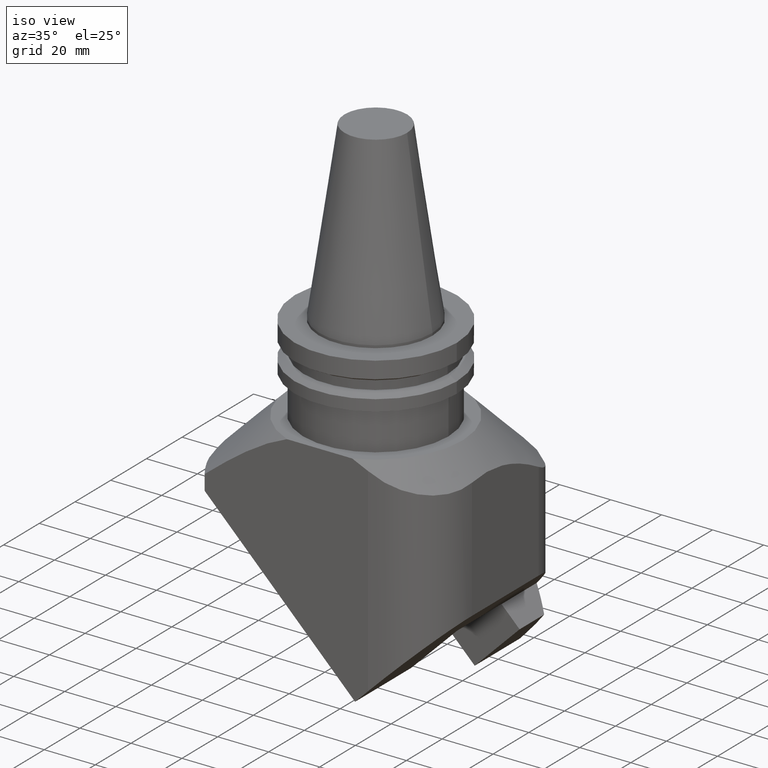
[diagram: clean part render]
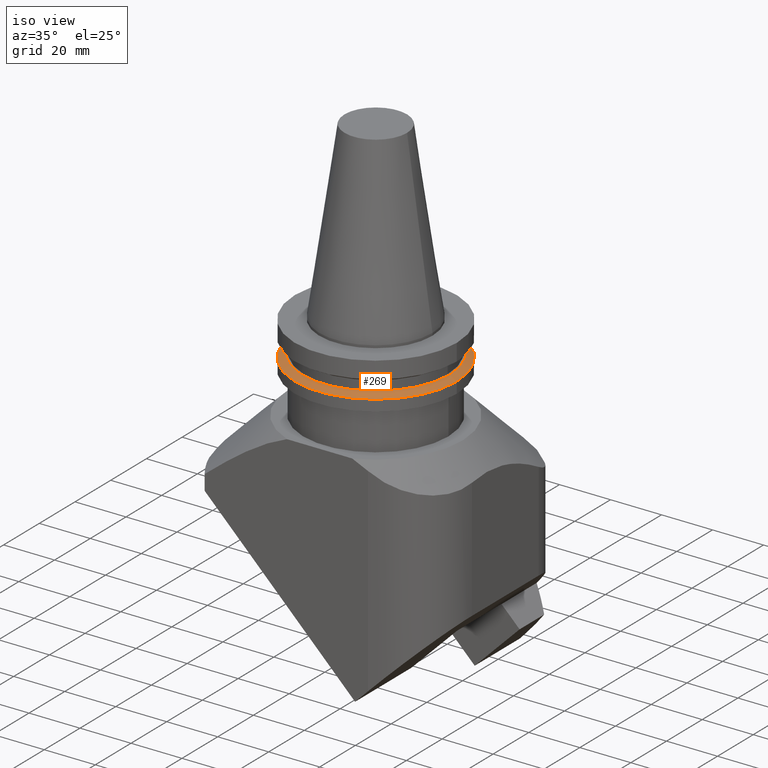
[diagram: same view with one face highlighted and labeled with its STEP entity id]
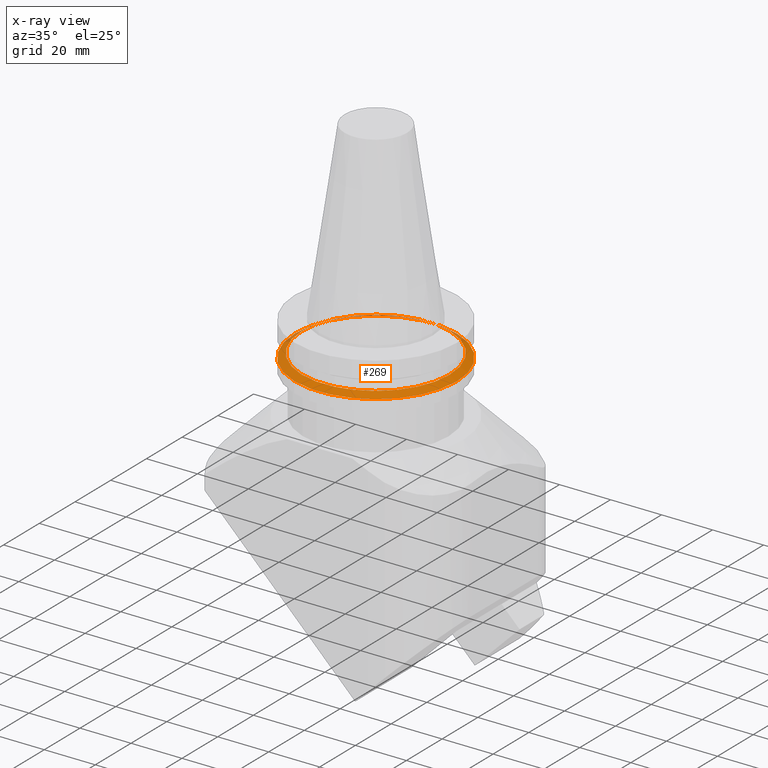
[diagram: x-ray of the same camera — body ghosted, the highlighted face saturated]
A machine part, iso view. The second image highlights one B-rep face of the part: STEP entity #269.
The next image is the same camera in x-ray: the body ghosted, the highlighted face saturated — about 8% of this face is hidden behind the body in this view.
In plain terms, the highlighted conical surface has half-angle 60 deg.
Its self-contained STEP definition (entity closure, byte-faithful):
#137=EDGE_CURVE('Unnamed[1]',#373,#373,#374,.T.);
#269=ADVANCED_FACE('Unnamed[1]',(#550,#551),#552,.T.);
#296=EDGE_CURVE('Unnamed[1]',#590,#590,#591,.T.);
#373=VERTEX_POINT('',#680);
#374=CIRCLE('',#681,31.75);
#550=FACE_BOUND('',#1013,.T.);
#551=FACE_BOUND('',#1014,.T.);
#552=CONICAL_SURFACE('',#1015,30.352956595,1.04719755170464);
#590=VERTEX_POINT('',#1066);
#591=CIRCLE('',#1067,28.95591319);
#680=CARTESIAN_POINT('',(31.75,-1.73534890390847E-014,-14.65316677));
#681=AXIS2_PLACEMENT_3D('',#1137,#1138,#1139);
#1013=EDGE_LOOP('',(#1337));
#1014=EDGE_LOOP('',(#1338));
#1015=AXIS2_PLACEMENT_3D('',#1339,#1340,#1341);
#1066=CARTESIAN_POINT('',(28.95591319,-1.57544702572565E-014,-13.04));
#1067=AXIS2_PLACEMENT_3D('',#1387,#1388,#1389);
#1137=CARTESIAN_POINT('',(1.79449537822528E-015,-3.25365662634525E-015,-14.65316677));
#1138=DIRECTION('',(1.2246467991474E-016,-2.22044604925031E-016,-1.0));
#1139=DIRECTION('',(1.0,-4.44089209850063E-016,1.2246467991474E-016));
#1337=ORIENTED_EDGE('',*,*,#137,.F.);
#1338=ORIENTED_EDGE('',*,*,#296,.T.);
#1339=CARTESIAN_POINT('',(1.69571740215672E-015,-3.07455913728383E-015,-13.846583385));
#1340=DIRECTION('',(1.22464679914746E-016,-2.22044604925031E-016,-1.0));
#1341=DIRECTION('',(1.0,-4.44089209850063E-016,1.22464679914746E-016));
#1387=CARTESIAN_POINT('',(1.59693942608815E-015,-2.89546164822241E-015,-13.04));
#1388=DIRECTION('',(1.22464679914725E-016,-2.22044604925031E-016,-1.0));
#1389=DIRECTION('',(1.0,-4.44089209850063E-016,1.22464679914725E-016));